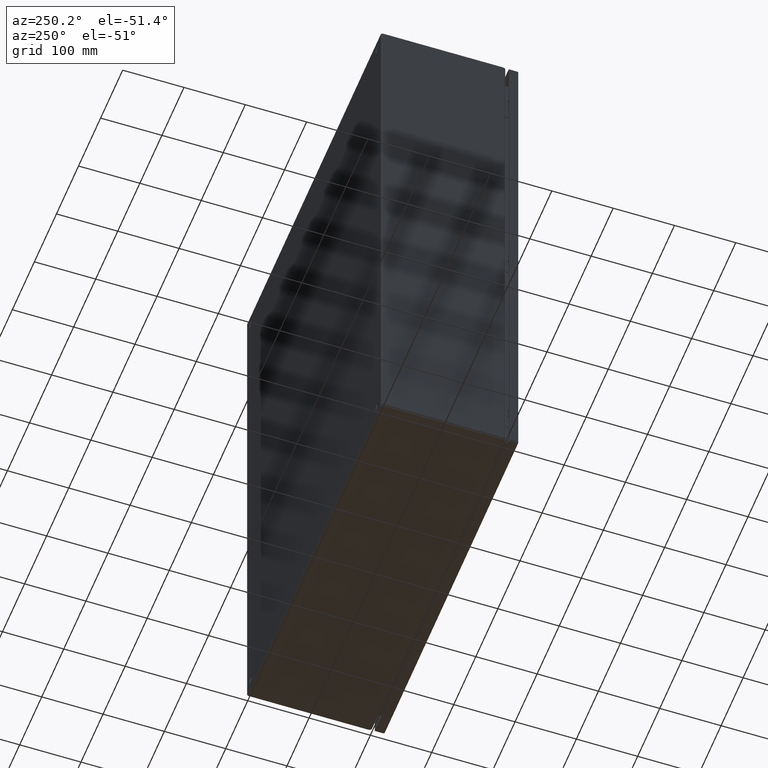
[diagram: clean part render]
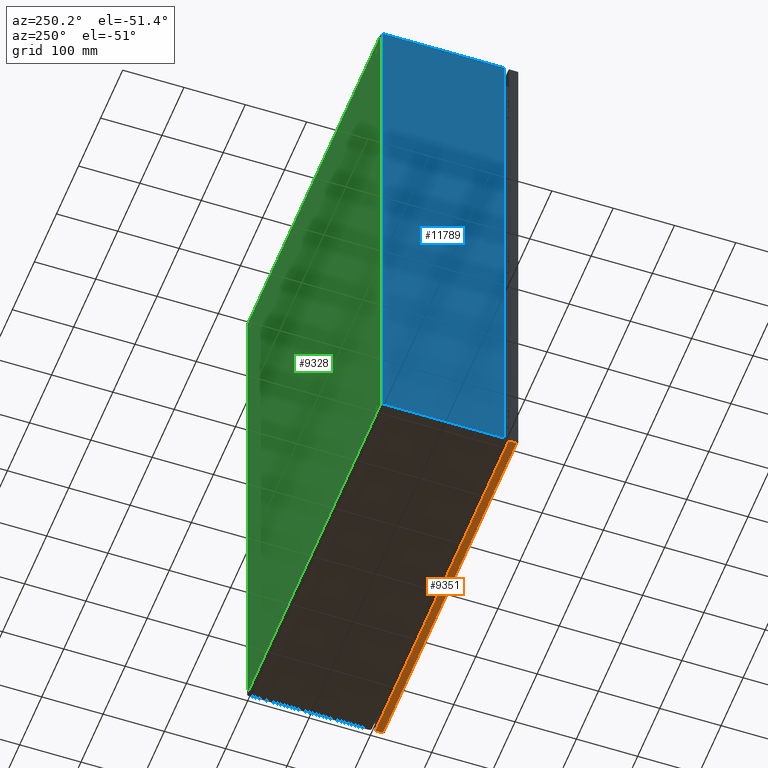
[diagram: same view with three faces highlighted in distinct colors, each labeled with its STEP entity id]
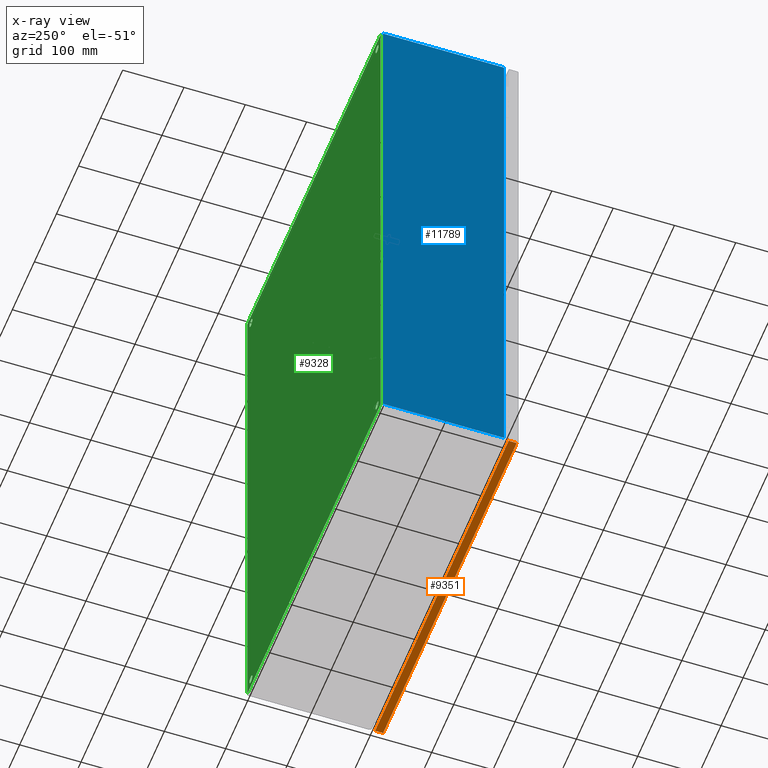
[diagram: x-ray of the same camera — body ghosted, the three highlighted faces saturated]
A machine part, auxiliary view with three faces highlighted in distinct colors.
The next image is the same camera in x-ray (body ghosted, the three faces saturated) — at least one of them is partly hidden behind the body in this view.
Their STEP definitions:

[orange] entity #9351 — the highlighted planar face has unit normal (0, 0, -1).
#171 = LINE ( 'NONE', #2782, #6487 ) ;
#1226 = ORIENTED_EDGE ( 'NONE', *, *, #2355, .T. ) ;
#2325 = LINE ( 'NONE', #12226, #20056 ) ;
#2355 = EDGE_CURVE ( 'NONE', #3384, #11878, #171, .T. ) ;
#2782 = CARTESIAN_POINT ( 'NONE',  ( -11.92392125984253148, -8.774499999999999744, -17.98500000000000654 ) ) ;
#3135 = EDGE_CURVE ( 'NONE', #3384, #19540, #2325, .T. ) ;
#3384 = VERTEX_POINT ( 'NONE', #10838 ) ;
#3599 = CARTESIAN_POINT ( 'NONE',  ( -11.92392125984253148, -8.212000000000001521, -17.98500000000000654 ) ) ;
#3640 = VERTEX_POINT ( 'NONE', #12645 ) ;
#4300 = DIRECTION ( 'NONE',  ( 0.0000000000000000000, 6.123031769111889989E-17, -1.000000000000000000 ) ) ;
#5483 = CARTESIAN_POINT ( 'NONE',  ( 11.90092125984250693, -8.212000000000001521, -17.98500000000000654 ) ) ;
#6487 = VECTOR ( 'NONE', #14695, 39.37007874015748143 ) ;
#7036 = ORIENTED_EDGE ( 'NONE', *, *, #7412, .T. ) ;
#7412 = EDGE_CURVE ( 'NONE', #3640, #19540, #8416, .T. ) ;
#8253 = DIRECTION ( 'NONE',  ( 1.000000000000000000, -0.0000000000000000000, 0.0000000000000000000 ) ) ;
#8416 = LINE ( 'NONE', #5483, #16285 ) ;
#9351 = ADVANCED_FACE ( 'NONE', ( #16066 ), #25507, .T. ) ;
#10838 = CARTESIAN_POINT ( 'NONE',  ( -11.92392125984253148, -8.728999999999993875, -17.98500000000000654 ) ) ;
#10901 = VECTOR ( 'NONE', #8253, 39.37007874015748143 ) ;
#11210 = DIRECTION ( 'NONE',  ( 1.000000000000000000, -3.749151804555340178E-33, -6.123031769111889989E-17 ) ) ;
#11878 = VERTEX_POINT ( 'NONE', #3599 ) ;
#12226 = CARTESIAN_POINT ( 'NONE',  ( 11.86499999999998778, -8.728999999999986770, -17.98500000000000654 ) ) ;
#12645 = CARTESIAN_POINT ( 'NONE',  ( 11.90092125984250693, -8.212000000000001521, -17.98500000000000654 ) ) ;
#13735 = DIRECTION ( 'NONE',  ( 0.0000000000000000000, 1.000000000000000000, 6.123031769111889989E-17 ) ) ;
#14695 = DIRECTION ( 'NONE',  ( 0.0000000000000000000, 1.000000000000000000, 6.123031769111889989E-17 ) ) ;
#15536 = ORIENTED_EDGE ( 'NONE', *, *, #21516, .T. ) ;
#16066 = FACE_OUTER_BOUND ( 'NONE', #24801, .T. ) ;
#16285 = VECTOR ( 'NONE', #29612, 39.37007874015748143 ) ;
#19540 = VERTEX_POINT ( 'NONE', #21963 ) ;
#19797 = AXIS2_PLACEMENT_3D ( 'NONE', #20100, #4300, #13735 ) ;
#20008 = LINE ( 'NONE', #29450, #10901 ) ;
#20056 = VECTOR ( 'NONE', #11210, 39.37007874015748143 ) ;
#20100 = CARTESIAN_POINT ( 'NONE',  ( 11.86499999999998778, -8.774499999999999744, -17.98500000000000654 ) ) ;
#21516 = EDGE_CURVE ( 'NONE', #11878, #3640, #20008, .T. ) ;
#21963 = CARTESIAN_POINT ( 'NONE',  ( 11.90092125984250693, -8.728999999999993875, -17.98500000000000654 ) ) ;
#24801 = EDGE_LOOP ( 'NONE', ( #27837, #1226, #15536, #7036 ) ) ;
#25507 = PLANE ( 'NONE',  #19797 ) ;
#27837 = ORIENTED_EDGE ( 'NONE', *, *, #3135, .F. ) ;
#29450 = CARTESIAN_POINT ( 'NONE',  ( 11.86499999999998778, -8.212000000000001521, -17.98500000000000654 ) ) ;
#29612 = DIRECTION ( 'NONE',  ( -3.885294924322510055E-15, -1.000000000000000000, 0.0000000000000000000 ) ) ;

[blue] entity #11789 — the highlighted planar face has unit normal (1, -0, 0).
#20 = DIRECTION ( 'NONE',  ( -2.781922600472770036E-16, -1.000000000000000000, -0.0000000000000000000 ) ) ;
#256 = EDGE_LOOP ( 'NONE', ( #20374, #1259, #11827, #20971, #958, #26107 ) ) ;
#705 = CARTESIAN_POINT ( 'NONE',  ( -11.99999999999999822, -7.763222692652901102, 17.54552766349240400 ) ) ;
#958 = ORIENTED_EDGE ( 'NONE', *, *, #28537, .F. ) ;
#995 = VECTOR ( 'NONE', #28507, 39.37007874015748143 ) ;
#1259 = ORIENTED_EDGE ( 'NONE', *, *, #16401, .F. ) ;
#1328 = LINE ( 'NONE', #10772, #995 ) ;
#1706 = LINE ( 'NONE', #11147, #11722 ) ;
#2101 = VERTEX_POINT ( 'NONE', #10248 ) ;
#3130 = DIRECTION ( 'NONE',  ( 1.000000000000000000, -2.781922600472770036E-16, 6.444457636430941207E-34 ) ) ;
#3622 = VERTEX_POINT ( 'NONE', #29377 ) ;
#3872 = EDGE_CURVE ( 'NONE', #13547, #21397, #8163, .T. ) ;
#3959 = DIRECTION ( 'NONE',  ( 6.444457636430941207E-34, -1.792798234657656208E-49, -1.000000000000000000 ) ) ;
#5097 = DIRECTION ( 'NONE',  ( 0.0000000000000000000, 0.0000000000000000000, 1.000000000000000000 ) ) ;
#8017 = AXIS2_PLACEMENT_3D ( 'NONE', #22112, #21831, #28941 ) ;
#8163 = CIRCLE ( 'NONE', #30394, 0.3823609811090009081 ) ;
#8329 = VERTEX_POINT ( 'NONE', #10024 ) ;
#8580 = EDGE_CURVE ( 'NONE', #8329, #3622, #1328, .T. ) ;
#9472 = AXIS2_PLACEMENT_3D ( 'NONE', #24482, #3130, #24337 ) ;
#9802 = VECTOR ( 'NONE', #3959, 39.37007874015748143 ) ;
#10024 = CARTESIAN_POINT ( 'NONE',  ( -11.99999999999999822, -7.763222692652907320, -17.92788864460133880 ) ) ;
#10248 = CARTESIAN_POINT ( 'NONE',  ( -12.00000000000000178, -7.891999999999999460, -17.90555033637158289 ) ) ;
#10772 = CARTESIAN_POINT ( 'NONE',  ( -12.00000000000000178, -0.07199999999999842637, -17.92788864460129616 ) ) ;
#11147 = CARTESIAN_POINT ( 'NONE',  ( -12.00000000000000178, -0.1079999999999980420, -17.89199999999999946 ) ) ;
#11722 = VECTOR ( 'NONE', #5097, 39.37007874015748143 ) ;
#11789 = ADVANCED_FACE ( 'NONE', ( #14895 ), #26362, .F. ) ;
#11827 = ORIENTED_EDGE ( 'NONE', *, *, #16772, .F. ) ;
#12713 = CARTESIAN_POINT ( 'NONE',  ( -12.00000000000000355, -7.891999999999999460, 17.90555033637158289 ) ) ;
#13547 = VERTEX_POINT ( 'NONE', #24496 ) ;
#13956 = CARTESIAN_POINT ( 'NONE',  ( -12.00000000000000178, -0.07199999999999842637, 17.92788864460145248 ) ) ;
#14781 = DIRECTION ( 'NONE',  ( 0.0000000000000000000, 1.000000000000000000, 0.0000000000000000000 ) ) ;
#14895 = FACE_OUTER_BOUND ( 'NONE', #256, .T. ) ;
#15655 = EDGE_CURVE ( 'NONE', #21397, #2101, #18504, .T. ) ;
#16401 = EDGE_CURVE ( 'NONE', #21778, #13547, #18594, .T. ) ;
#16772 = EDGE_CURVE ( 'NONE', #3622, #21778, #1706, .T. ) ;
#17259 = DIRECTION ( 'NONE',  ( 1.000000000000000000, -3.732053000892360069E-16, 6.444457636430940352E-34 ) ) ;
#17347 = CARTESIAN_POINT ( 'NONE',  ( -12.00000000000000178, -0.1079999999999988192, 17.92788864460145604 ) ) ;
#18504 = LINE ( 'NONE', #30280, #9802 ) ;
#18594 = LINE ( 'NONE', #13956, #24563 ) ;
#20374 = ORIENTED_EDGE ( 'NONE', *, *, #3872, .F. ) ;
#20971 = ORIENTED_EDGE ( 'NONE', *, *, #8580, .F. ) ;
#21397 = VERTEX_POINT ( 'NONE', #12713 ) ;
#21778 = VERTEX_POINT ( 'NONE', #17347 ) ;
#21831 = DIRECTION ( 'NONE',  ( 1.000000000000000000, -3.732053000892360069E-16, 6.444457636430940352E-34 ) ) ;
#22112 = CARTESIAN_POINT ( 'NONE',  ( -11.99999999999999822, -7.763222692652901102, -17.54552766349240400 ) ) ;
#24337 = DIRECTION ( 'NONE',  ( 2.781922600472770036E-16, 1.000000000000000000, 0.0000000000000000000 ) ) ;
#24482 = CARTESIAN_POINT ( 'NONE',  ( -12.00000000000000178, -0.07199999999999842637, 125.2980000000000018 ) ) ;
#24496 = CARTESIAN_POINT ( 'NONE',  ( -11.99999999999999822, -7.763222692652907320, 17.92788864460141696 ) ) ;
#24563 = VECTOR ( 'NONE', #20, 39.37007874015748143 ) ;
#24819 = CIRCLE ( 'NONE', #8017, 0.3823609811090009081 ) ;
#26107 = ORIENTED_EDGE ( 'NONE', *, *, #15655, .F. ) ;
#26362 = PLANE ( 'NONE',  #9472 ) ;
#28507 = DIRECTION ( 'NONE',  ( 2.781922600472770036E-16, 1.000000000000000000, 0.0000000000000000000 ) ) ;
#28537 = EDGE_CURVE ( 'NONE', #2101, #8329, #24819, .T. ) ;
#28941 = DIRECTION ( 'NONE',  ( 0.0000000000000000000, 1.000000000000000000, 0.0000000000000000000 ) ) ;
#29377 = CARTESIAN_POINT ( 'NONE',  ( -12.00000000000000178, -0.1079999999999974591, -17.92788864460129972 ) ) ;
#30280 = CARTESIAN_POINT ( 'NONE',  ( -12.00000000000000355, -7.891999999999999460, 125.2980000000000018 ) ) ;
#30394 = AXIS2_PLACEMENT_3D ( 'NONE', #705, #17259, #14781 ) ;

[green] entity #9328 — the highlighted planar face has unit normal (0, -1, 0).
#614 = VERTEX_POINT ( 'NONE', #4582 ) ;
#803 = DIRECTION ( 'NONE',  ( 0.0000000000000000000, 1.000000000000000000, 0.0000000000000000000 ) ) ;
#1002 = EDGE_CURVE ( 'NONE', #2224, #18476, #15916, .T. ) ;
#1020 = VECTOR ( 'NONE', #1719, 39.37007874015748143 ) ;
#1176 = CARTESIAN_POINT ( 'NONE',  ( -11.89200000000000124, 0.0000000000000000000, -17.92800000000000082 ) ) ;
#1575 = VERTEX_POINT ( 'NONE', #1957 ) ;
#1719 = DIRECTION ( 'NONE',  ( 1.000000000000000000, 0.0000000000000000000, 0.0000000000000000000 ) ) ;
#1824 = EDGE_LOOP ( 'NONE', ( #6101, #23687 ) ) ;
#1957 = CARTESIAN_POINT ( 'NONE',  ( 11.25000000000000000, 0.0000000000000000000, 17.00000000000000000 ) ) ;
#1989 = FACE_BOUND ( 'NONE', #18568, .T. ) ;
#2224 = VERTEX_POINT ( 'NONE', #17846 ) ;
#3120 = CARTESIAN_POINT ( 'NONE',  ( -11.25000000000000000, 0.0000000000000000000, 17.00000000000000000 ) ) ;
#3496 = CARTESIAN_POINT ( 'NONE',  ( 11.25000000000000000, 0.0000000000000000000, -17.25000000000000000 ) ) ;
#3874 = CIRCLE ( 'NONE', #21678, 0.2500000000000008882 ) ;
#4582 = CARTESIAN_POINT ( 'NONE',  ( 11.25000000000000000, 0.0000000000000000000, 17.50000000000000000 ) ) ;
#4682 = EDGE_CURVE ( 'NONE', #21817, #10397, #30366, .T. ) ;
#5068 = ORIENTED_EDGE ( 'NONE', *, *, #5413, .F. ) ;
#5095 = ORIENTED_EDGE ( 'NONE', *, *, #4682, .F. ) ;
#5160 = EDGE_CURVE ( 'NONE', #10397, #6205, #14638, .T. ) ;
#5413 = EDGE_CURVE ( 'NONE', #14503, #9866, #8224, .T. ) ;
#5537 = CARTESIAN_POINT ( 'NONE',  ( 11.25000000000000000, 0.0000000000000000000, -17.50000000000000000 ) ) ;
#6101 = ORIENTED_EDGE ( 'NONE', *, *, #13343, .F. ) ;
#6205 = VERTEX_POINT ( 'NONE', #17621 ) ;
#6512 = AXIS2_PLACEMENT_3D ( 'NONE', #24171, #803, #9960 ) ;
#6738 = ORIENTED_EDGE ( 'NONE', *, *, #5160, .F. ) ;
#6848 = DIRECTION ( 'NONE',  ( 0.0000000000000000000, 0.0000000000000000000, 1.000000000000000000 ) ) ;
#6880 = CARTESIAN_POINT ( 'NONE',  ( 11.25000000000000000, 0.0000000000000000000, -17.25000000000000000 ) ) ;
#6911 = CIRCLE ( 'NONE', #14311, 0.2500000000000008882 ) ;
#7146 = DIRECTION ( 'NONE',  ( -1.000000000000000000, -0.0000000000000000000, -0.0000000000000000000 ) ) ;
#7523 = AXIS2_PLACEMENT_3D ( 'NONE', #29404, #8205, #14273 ) ;
#7539 = DIRECTION ( 'NONE',  ( 0.0000000000000000000, -0.0000000000000000000, -1.000000000000000000 ) ) ;
#8205 = DIRECTION ( 'NONE',  ( 0.0000000000000000000, 1.000000000000000000, 0.0000000000000000000 ) ) ;
#8224 = CIRCLE ( 'NONE', #11193, 0.2500000000000008882 ) ;
#8302 = CARTESIAN_POINT ( 'NONE',  ( -11.25000000000000000, 0.0000000000000000000, -17.00000000000000000 ) ) ;
#8660 = PLANE ( 'NONE',  #15852 ) ;
#8714 = ORIENTED_EDGE ( 'NONE', *, *, #8899, .F. ) ;
#8899 = EDGE_CURVE ( 'NONE', #6205, #17082, #22594, .T. ) ;
#8967 = FACE_BOUND ( 'NONE', #24905, .T. ) ;
#9209 = VECTOR ( 'NONE', #7539, 39.37007874015748143 ) ;
#9210 = DIRECTION ( 'NONE',  ( 0.0000000000000000000, 0.0000000000000000000, 1.000000000000000000 ) ) ;
#9328 = ADVANCED_FACE ( 'NONE', ( #1989, #23024, #11270, #20712, #8967 ), #8660, .F. ) ;
#9359 = DIRECTION ( 'NONE',  ( 0.0000000000000000000, 1.000000000000000000, 0.0000000000000000000 ) ) ;
#9412 = ORIENTED_EDGE ( 'NONE', *, *, #20713, .F. ) ;
#9530 = DIRECTION ( 'NONE',  ( 0.0000000000000000000, 0.0000000000000000000, 1.000000000000000000 ) ) ;
#9833 = ORIENTED_EDGE ( 'NONE', *, *, #29726, .F. ) ;
#9866 = VERTEX_POINT ( 'NONE', #3120 ) ;
#9960 = DIRECTION ( 'NONE',  ( 0.0000000000000000000, 0.0000000000000000000, 1.000000000000000000 ) ) ;
#10397 = VERTEX_POINT ( 'NONE', #17707 ) ;
#10943 = AXIS2_PLACEMENT_3D ( 'NONE', #29788, #28048, #6848 ) ;
#11193 = AXIS2_PLACEMENT_3D ( 'NONE', #30552, #9359, #9530 ) ;
#11270 = FACE_BOUND ( 'NONE', #28063, .T. ) ;
#11445 = CIRCLE ( 'NONE', #10943, 0.2500000000000008882 ) ;
#11666 = EDGE_CURVE ( 'NONE', #9866, #14503, #25284, .T. ) ;
#11714 = CARTESIAN_POINT ( 'NONE',  ( 11.25000000000000000, 0.0000000000000000000, -17.00000000000000000 ) ) ;
#11776 = CARTESIAN_POINT ( 'NONE',  ( -11.92800000000000082, 0.0000000000000000000, 17.89199999999999946 ) ) ;
#12085 = DIRECTION ( 'NONE',  ( 0.0000000000000000000, 1.000000000000000000, 0.0000000000000000000 ) ) ;
#12227 = CARTESIAN_POINT ( 'NONE',  ( 11.89200000000000124, -1.023004314185515581E-15, 17.89199999999999946 ) ) ;
#13343 = EDGE_CURVE ( 'NONE', #25337, #29318, #3874, .T. ) ;
#13773 = CARTESIAN_POINT ( 'NONE',  ( -11.92800000000000082, 0.0000000000000000000, -17.89199999999999946 ) ) ;
#14273 = DIRECTION ( 'NONE',  ( 0.0000000000000000000, 0.0000000000000000000, 1.000000000000000000 ) ) ;
#14311 = AXIS2_PLACEMENT_3D ( 'NONE', #19049, #12085, #25551 ) ;
#14470 = DIRECTION ( 'NONE',  ( 0.0000000000000000000, 1.000000000000000000, 0.0000000000000000000 ) ) ;
#14503 = VERTEX_POINT ( 'NONE', #30560 ) ;
#14531 = EDGE_CURVE ( 'NONE', #29318, #25337, #17213, .T. ) ;
#14638 = LINE ( 'NONE', #1176, #9209 ) ;
#14886 = EDGE_CURVE ( 'NONE', #1575, #614, #27123, .T. ) ;
#15671 = DIRECTION ( 'NONE',  ( 0.0000000000000000000, 0.0000000000000000000, 1.000000000000000000 ) ) ;
#15852 = AXIS2_PLACEMENT_3D ( 'NONE', #18403, #18086, #24904 ) ;
#15916 = CIRCLE ( 'NONE', #7523, 0.2500000000000008882 ) ;
#16007 = CARTESIAN_POINT ( 'NONE',  ( 11.89200000000000124, 0.0000000000000000000, -17.92800000000000082 ) ) ;
#16277 = ORIENTED_EDGE ( 'NONE', *, *, #20251, .F. ) ;
#17082 = VERTEX_POINT ( 'NONE', #18072 ) ;
#17213 = CIRCLE ( 'NONE', #22153, 0.2500000000000008882 ) ;
#17621 = CARTESIAN_POINT ( 'NONE',  ( -11.89200000000000124, 3.927031490892378253E-16, -17.89199999999999946 ) ) ;
#17707 = CARTESIAN_POINT ( 'NONE',  ( -11.89200000000000124, 2.304996744654213154E-16, 17.89199999999999946 ) ) ;
#17846 = CARTESIAN_POINT ( 'NONE',  ( -11.25000000000000000, 0.0000000000000000000, -17.50000000000000000 ) ) ;
#17863 = DIRECTION ( 'NONE',  ( 0.0000000000000000000, 1.000000000000000000, 0.0000000000000000000 ) ) ;
#18072 = CARTESIAN_POINT ( 'NONE',  ( 11.89200000000000124, -7.540880273091896859E-16, -17.89199999999999946 ) ) ;
#18086 = DIRECTION ( 'NONE',  ( 0.0000000000000000000, -1.000000000000000000, 0.0000000000000000000 ) ) ;
#18394 = ORIENTED_EDGE ( 'NONE', *, *, #1002, .F. ) ;
#18403 = CARTESIAN_POINT ( 'NONE',  ( -11.92800000000000082, 0.0000000000000000000, -17.92800000000000082 ) ) ;
#18476 = VERTEX_POINT ( 'NONE', #8302 ) ;
#18568 = EDGE_LOOP ( 'NONE', ( #9833, #18394 ) ) ;
#19049 = CARTESIAN_POINT ( 'NONE',  ( 11.25000000000000000, 0.0000000000000000000, 17.25000000000000000 ) ) ;
#19707 = AXIS2_PLACEMENT_3D ( 'NONE', #22482, #17863, #15671 ) ;
#20053 = VECTOR ( 'NONE', #7146, 39.37007874015748143 ) ;
#20251 = EDGE_CURVE ( 'NONE', #17082, #21817, #27780, .T. ) ;
#20712 = FACE_BOUND ( 'NONE', #1824, .T. ) ;
#20713 = EDGE_CURVE ( 'NONE', #614, #1575, #6911, .T. ) ;
#21678 = AXIS2_PLACEMENT_3D ( 'NONE', #3496, #29648, #25144 ) ;
#21817 = VERTEX_POINT ( 'NONE', #12227 ) ;
#22051 = EDGE_LOOP ( 'NONE', ( #8714, #6738, #5095, #16277 ) ) ;
#22153 = AXIS2_PLACEMENT_3D ( 'NONE', #6880, #14470, #9210 ) ;
#22482 = CARTESIAN_POINT ( 'NONE',  ( 11.25000000000000000, 0.0000000000000000000, 17.25000000000000000 ) ) ;
#22594 = LINE ( 'NONE', #13773, #1020 ) ;
#23024 = FACE_OUTER_BOUND ( 'NONE', #22051, .T. ) ;
#23687 = ORIENTED_EDGE ( 'NONE', *, *, #14531, .F. ) ;
#23997 = ORIENTED_EDGE ( 'NONE', *, *, #11666, .F. ) ;
#24171 = CARTESIAN_POINT ( 'NONE',  ( -11.25000000000000000, 0.0000000000000000000, 17.25000000000000000 ) ) ;
#24257 = VECTOR ( 'NONE', #24985, 39.37007874015748143 ) ;
#24904 = DIRECTION ( 'NONE',  ( 0.0000000000000000000, -0.0000000000000000000, -1.000000000000000000 ) ) ;
#24905 = EDGE_LOOP ( 'NONE', ( #9412, #26841 ) ) ;
#24985 = DIRECTION ( 'NONE',  ( -0.0000000000000000000, 0.0000000000000000000, 1.000000000000000000 ) ) ;
#25144 = DIRECTION ( 'NONE',  ( 0.0000000000000000000, 0.0000000000000000000, 1.000000000000000000 ) ) ;
#25284 = CIRCLE ( 'NONE', #6512, 0.2500000000000008882 ) ;
#25337 = VERTEX_POINT ( 'NONE', #11714 ) ;
#25551 = DIRECTION ( 'NONE',  ( 0.0000000000000000000, 0.0000000000000000000, 1.000000000000000000 ) ) ;
#26841 = ORIENTED_EDGE ( 'NONE', *, *, #14886, .F. ) ;
#27123 = CIRCLE ( 'NONE', #19707, 0.2500000000000008882 ) ;
#27780 = LINE ( 'NONE', #16007, #24257 ) ;
#28048 = DIRECTION ( 'NONE',  ( 0.0000000000000000000, 1.000000000000000000, 0.0000000000000000000 ) ) ;
#28063 = EDGE_LOOP ( 'NONE', ( #5068, #23997 ) ) ;
#29318 = VERTEX_POINT ( 'NONE', #5537 ) ;
#29404 = CARTESIAN_POINT ( 'NONE',  ( -11.25000000000000000, 0.0000000000000000000, -17.25000000000000000 ) ) ;
#29648 = DIRECTION ( 'NONE',  ( 0.0000000000000000000, 1.000000000000000000, 0.0000000000000000000 ) ) ;
#29726 = EDGE_CURVE ( 'NONE', #18476, #2224, #11445, .T. ) ;
#29788 = CARTESIAN_POINT ( 'NONE',  ( -11.25000000000000000, 0.0000000000000000000, -17.25000000000000000 ) ) ;
#30366 = LINE ( 'NONE', #11776, #20053 ) ;
#30552 = CARTESIAN_POINT ( 'NONE',  ( -11.25000000000000000, 0.0000000000000000000, 17.25000000000000000 ) ) ;
#30560 = CARTESIAN_POINT ( 'NONE',  ( -11.25000000000000000, 0.0000000000000000000, 17.50000000000000000 ) ) ;